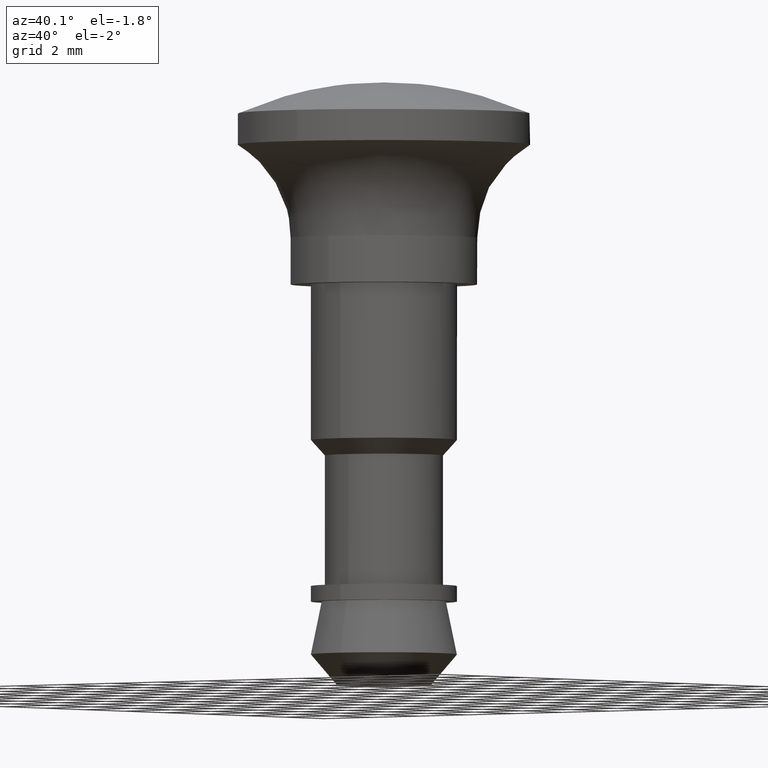
[diagram: clean part render]
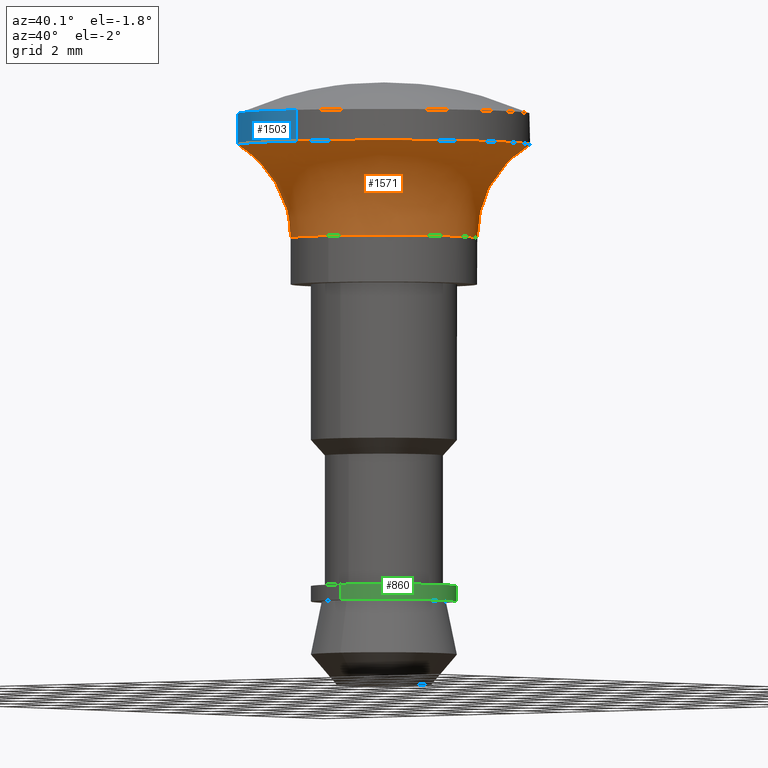
[diagram: same view with three faces highlighted in distinct colors, each labeled with its STEP entity id]
A machine part, auxiliary view with three faces highlighted in distinct colors.
Their STEP definitions:

[orange] entity #1571 — the highlighted face is a freeform B-spline surface patch.
#70=CARTESIAN_POINT('',(-2.808430836194138,-1.054853657297454,1.498000000000001));
#71=VERTEX_POINT('',#70);
#72=CARTESIAN_POINT('',(-3.0,0.0,1.498000000000000));
#73=VERTEX_POINT('',#72);
#74=CARTESIAN_POINT('',(-2.808430836194138,-1.054853657297454,1.498000000000001));
#75=CARTESIAN_POINT('',(-3.000000000000001,-0.544821864819847,1.498000000000000));
#76=CARTESIAN_POINT('',(-3.0,0.0,1.498000000000000));
#84=(BOUNDED_CURVE()B_SPLINE_CURVE(2,(#74,#75,#76),.UNSPECIFIED.,.F.,.U.)B_SPLINE_CURVE_WITH_KNOTS((3,3),(0.940284200805494,1.0),.UNSPECIFIED.)CURVE()GEOMETRIC_REPRESENTATION_ITEM()RATIONAL_B_SPLINE_CURVE((0.893499591234335,0.930038589439614,1.0))REPRESENTATION_ITEM(''));
#85=EDGE_CURVE('',#71,#73,#84,.T.);
#87=CARTESIAN_POINT('',(-2.470599186242353,1.701804824575161,1.497997071134931));
#88=VERTEX_POINT('',#87);
#89=CARTESIAN_POINT('',(-3.0,0.0,1.498000000000000));
#90=CARTESIAN_POINT('',(-3.000000000000595,0.933245938866376,1.497998535567466));
#91=CARTESIAN_POINT('',(-2.470599186242354,1.701804824575161,1.497997071134931));
#99=(BOUNDED_CURVE()B_SPLINE_CURVE(2,(#89,#90,#91),.UNSPECIFIED.,.F.,.U.)B_SPLINE_CURVE_WITH_KNOTS((3,3),(0.0,0.097429828936804),.UNSPECIFIED.)CURVE()GEOMETRIC_REPRESENTATION_ITEM()RATIONAL_B_SPLINE_CURVE((1.0,0.885853855177021,0.860677625265231))REPRESENTATION_ITEM(''));
#100=EDGE_CURVE('',#73,#88,#99,.T.);
#102=CARTESIAN_POINT('',(1.840320043787088,2.369223952363005,1.497997005857969));
#103=VERTEX_POINT('',#102);
#119=CARTESIAN_POINT('',(3.0,0.0,1.498000000000000));
#120=VERTEX_POINT('',#119);
#121=CARTESIAN_POINT('',(1.840320043787088,2.369223952363005,1.497997005857970));
#122=CARTESIAN_POINT('',(3.000000000000771,1.468430143625183,1.497998502928985));
#123=CARTESIAN_POINT('',(3.0,0.0,1.498000000000000));
#131=(BOUNDED_CURVE()B_SPLINE_CURVE(2,(#121,#122,#123),.UNSPECIFIED.,.F.,.U.)B_SPLINE_CURVE_WITH_KNOTS((3,3),(0.356116021520993,0.500000000000000),.UNSPECIFIED.)CURVE()GEOMETRIC_REPRESENTATION_ITEM()RATIONAL_B_SPLINE_CURVE((0.856895697210534,0.831429433630393,1.0))REPRESENTATION_ITEM(''));
#132=EDGE_CURVE('',#103,#120,#131,.T.);
#134=CARTESIAN_POINT('',(0.183141592714504,-2.994404641494152,1.498000000000070));
#135=VERTEX_POINT('',#134);
#136=CARTESIAN_POINT('',(3.0,0.0,1.498000000000000));
#137=CARTESIAN_POINT('',(3.0,-2.822122002065718,1.498000000000001));
#138=CARTESIAN_POINT('',(0.183141592714504,-2.994404641494152,1.498000000000070));
#146=(BOUNDED_CURVE()B_SPLINE_CURVE(2,(#136,#137,#138),.UNSPECIFIED.,.F.,.U.)B_SPLINE_CURVE_WITH_KNOTS((3,3),(0.500000000000000,0.739333194226175),.UNSPECIFIED.)CURVE()GEOMETRIC_REPRESENTATION_ITEM()RATIONAL_B_SPLINE_CURVE((1.0,0.719603721496762,0.976072538860020))REPRESENTATION_ITEM(''));
#147=EDGE_CURVE('',#120,#135,#146,.T.);
#225=CARTESIAN_POINT('',(0.183141592714504,-2.994404641494152,1.498000000000070));
#226=CARTESIAN_POINT('',(0.091656271306839,-3.000000000000000,1.498000000000000));
#227=CARTESIAN_POINT('',(0.0,-3.0,1.498000000000000));
#228=CARTESIAN_POINT('',(-2.077829207340088,-3.0,1.498000000000001));
#229=CARTESIAN_POINT('',(-2.808430836194138,-1.054853657297454,1.498000000000002));
#237=(BOUNDED_CURVE()B_SPLINE_CURVE(2,(#225,#226,#227,#228,#229),.UNSPECIFIED.,.F.,.U.)B_SPLINE_CURVE_WITH_KNOTS((3,2,3),(0.739333194226175,0.750000000000000,0.940284200805494),.UNSPECIFIED.)CURVE()GEOMETRIC_REPRESENTATION_ITEM()RATIONAL_B_SPLINE_CURVE((0.976072538860020,0.987503059689786,1.0,0.777068191746934,0.893499591234334))REPRESENTATION_ITEM(''));
#238=EDGE_CURVE('',#135,#71,#237,.T.);
#1310=CARTESIAN_POINT('',(-4.399878107368780,-1.652601384581499,4.499666203920985));
#1311=VERTEX_POINT('',#1310);
#1312=CARTESIAN_POINT('',(-4.700000000000000,0.0,4.499666203960731));
#1313=VERTEX_POINT('',#1312);
#1314=CARTESIAN_POINT('',(-4.399878107368779,-1.652601384581500,4.499666203920985));
#1315=CARTESIAN_POINT('',(-4.700000930966199,-0.853552970732249,4.499666203940858));
#1316=CARTESIAN_POINT('',(-4.700000000000000,0.0,4.499666203960731));
#1324=(BOUNDED_CURVE()B_SPLINE_CURVE(2,(#1314,#1315,#1316),.UNSPECIFIED.,.F.,.U.)B_SPLINE_CURVE_WITH_KNOTS((3,3),(0.940284307113158,1.0),.UNSPECIFIED.)CURVE()GEOMETRIC_REPRESENTATION_ITEM()RATIONAL_B_SPLINE_CURVE((0.893499721329846,0.930038713986789,1.0))REPRESENTATION_ITEM(''));
#1325=EDGE_CURVE('',#1311,#1313,#1324,.T.);
#1381=CARTESIAN_POINT('',(0.286922287763427,-4.691235902913967,4.499666203926619));
#1382=VERTEX_POINT('',#1381);
#1388=CARTESIAN_POINT('',(4.700000000000000,0.0,4.499666203960731));
#1389=VERTEX_POINT('',#1388);
#1390=CARTESIAN_POINT('',(4.700000000000000,0.0,4.499666203960731));
#1391=CARTESIAN_POINT('',(4.700000060709562,-4.421325143596317,4.499666203943675));
#1392=CARTESIAN_POINT('',(0.286922287763427,-4.691235902913967,4.499666203926619));
#1400=(BOUNDED_CURVE()B_SPLINE_CURVE(2,(#1390,#1391,#1392),.UNSPECIFIED.,.F.,.U.)B_SPLINE_CURVE_WITH_KNOTS((3,3),(0.500000000000000,0.739333181803199),.UNSPECIFIED.)CURVE()GEOMETRIC_REPRESENTATION_ITEM()RATIONAL_B_SPLINE_CURVE((1.0,0.719603736051183,0.976072512235166))REPRESENTATION_ITEM(''));
#1401=EDGE_CURVE('',#1389,#1382,#1400,.T.);
#1403=CARTESIAN_POINT('',(2.883163764809257,3.711779003359970,4.499662163489473));
#1404=VERTEX_POINT('',#1403);
#1405=CARTESIAN_POINT('',(2.883163764809257,3.711779003359971,4.499662163489474));
#1406=CARTESIAN_POINT('',(4.699997933374476,2.300538031613682,4.499664183725104));
#1407=CARTESIAN_POINT('',(4.700000000000000,0.0,4.499666203960731));
#1415=(BOUNDED_CURVE()B_SPLINE_CURVE(2,(#1405,#1406,#1407),.UNSPECIFIED.,.F.,.U.)B_SPLINE_CURVE_WITH_KNOTS((3,3),(0.356116014561318,0.500000000000000),.UNSPECIFIED.)CURVE()GEOMETRIC_REPRESENTATION_ITEM()RATIONAL_B_SPLINE_CURVE((0.856895699674143,0.831429425476626,1.0))REPRESENTATION_ITEM(''));
#1416=EDGE_CURVE('',#1404,#1389,#1415,.T.);
#1418=CARTESIAN_POINT('',(-3.870603208739954,2.666164060844125,4.499666203887038));
#1419=VERTEX_POINT('',#1418);
#1435=CARTESIAN_POINT('',(-4.700000000000000,0.0,4.499666203960731));
#1436=CARTESIAN_POINT('',(-4.700000000000000,1.462087414509130,4.499666203960730));
#1437=CARTESIAN_POINT('',(-3.870603208739955,2.666164060844125,4.499666203887037));
#1445=(BOUNDED_CURVE()B_SPLINE_CURVE(2,(#1435,#1436,#1437),.UNSPECIFIED.,.F.,.U.)B_SPLINE_CURVE_WITH_KNOTS((3,3),(0.0,0.097429953509399),.UNSPECIFIED.)CURVE()GEOMETRIC_REPRESENTATION_ITEM()RATIONAL_B_SPLINE_CURVE((1.0,0.885853709231149,0.860677560885333))REPRESENTATION_ITEM(''));
#1446=EDGE_CURVE('',#1313,#1419,#1445,.T.);
#1469=CARTESIAN_POINT('',(0.286922287763427,-4.691235902913967,4.499666203926619));
#1470=CARTESIAN_POINT('',(0.143595074809286,-4.700001958638461,4.499666203926502));
#1471=CARTESIAN_POINT('',(0.000000037626590,-4.700001930900740,4.499666203926380));
#1472=CARTESIAN_POINT('',(-3.255269030812446,-4.700001302092490,4.499666203923624));
#1473=CARTESIAN_POINT('',(-4.399878107368779,-1.652601384581500,4.499666203920985));
#1481=(BOUNDED_CURVE()B_SPLINE_CURVE(2,(#1469,#1470,#1471,#1472,#1473),.UNSPECIFIED.,.F.,.U.)B_SPLINE_CURVE_WITH_KNOTS((3,2,3),(0.739333181803199,0.750000000000000,0.940284307113158),.UNSPECIFIED.)CURVE()GEOMETRIC_REPRESENTATION_ITEM()RATIONAL_B_SPLINE_CURVE((0.976072512235166,0.987503045135364,1.0,0.777068067199758,0.893499721329846))REPRESENTATION_ITEM(''));
#1482=EDGE_CURVE('',#1382,#1311,#1481,.T.);
#1504=CARTESIAN_POINT('',(1.843247145158280,2.372991441459786,1.315314919886160));
#1505=CARTESIAN_POINT('',(4.084189775755932,0.632314659342278,1.315314919886161));
#1506=CARTESIAN_POINT('',(2.474526819895735,-1.704513255152990,1.315314919886160));
#1507=CARTESIAN_POINT('',(0.770013564742747,-4.179040075048725,1.315314919886161));
#1508=CARTESIAN_POINT('',(-1.704513255152990,-2.474526819895735,1.315314919886160));
#1509=CARTESIAN_POINT('',(-4.179040075048725,-0.770013564742747,1.315314919886161));
#1510=CARTESIAN_POINT('',(-2.474526819895735,1.704513255152990,1.315314919886160));
#1511=CARTESIAN_POINT('',(1.774082235846026,2.283948722322289,3.472493875755331));
#1512=CARTESIAN_POINT('',(3.930937068328064,0.608588060234234,3.472493875755332));
#1513=CARTESIAN_POINT('',(2.381674147622028,-1.640554113795378,3.472493875755332));
#1514=CARTESIAN_POINT('',(0.741120033826650,-4.022228261417407,3.472493875755331));
#1515=CARTESIAN_POINT('',(-1.640554113795378,-2.381674147622028,3.472493875755332));
#1516=CARTESIAN_POINT('',(-4.022228261417407,-0.741120033826650,3.472493875755331));
#1517=CARTESIAN_POINT('',(-2.381674147622030,1.640554113795378,3.472493875755332));
#1518=CARTESIAN_POINT('',(2.925935598041360,3.766841658023266,4.540387040544688));
#1519=CARTESIAN_POINT('',(6.483165475357175,1.003724311084771,4.540387040544688));
#1520=CARTESIAN_POINT('',(3.928016994172144,-2.705712049350401,4.540387040544688));
#1521=CARTESIAN_POINT('',(1.222304944821743,-6.633729043522544,4.540387040544688));
#1522=CARTESIAN_POINT('',(-2.705712049350400,-3.928016994172144,4.540387040544688));
#1523=CARTESIAN_POINT('',(-6.633729043522544,-1.222304944821744,4.540387040544688));
#1524=CARTESIAN_POINT('',(-3.928016994172144,2.705712049350400,4.540387040544688));
#1532=(BOUNDED_SURFACE()B_SPLINE_SURFACE(2,2,((#1504,#1511,#1518),(#1505,#1512,#1519),(#1506,#1513,#1520),(#1507,#1514,#1521),(#1508,#1515,#1522),(#1509,#1516,#1523),(#1510,#1517,#1524)),.UNSPECIFIED.,.F.,.F.,.U.)B_SPLINE_SURFACE_WITH_KNOTS((3,2,2,3),(3,3),(0.0,7.586616001491278,15.489341003044689,23.392066004598110),(0.0,3.968106248262008),.UNSPECIFIED.)GEOMETRIC_REPRESENTATION_ITEM()RATIONAL_B_SPLINE_SURFACE(((0.861043302611719,0.780709854679835,0.977505800795127),(0.633180189259375,0.574105869058425,0.718822509939086),(0.880857486381488,0.798675418646914,1.0),(0.622860301879287,0.564748804492238,0.707106781186548),(0.880857486381488,0.798675418646914,1.0),(0.622860301879287,0.564748804492238,0.707106781186548),(0.880857486381488,0.798675418646914,1.0)))REPRESENTATION_ITEM('')SURFACE());
#1533=ORIENTED_EDGE('',*,*,#132,.F.);
#1534=CARTESIAN_POINT('',(1.840320043787088,2.369223952363005,1.497997005857969));
#1535=CARTESIAN_POINT('',(1.840318801150608,2.369222770392055,3.480226193743514));
#1536=CARTESIAN_POINT('',(2.883163764809258,3.711779003359970,4.499662163489473));
#1544=(BOUNDED_CURVE()B_SPLINE_CURVE(2,(#1534,#1535,#1536),.UNSPECIFIED.,.F.,.U.)B_SPLINE_CURVE_WITH_KNOTS((3,3),(-1.342773580176713,-0.032801488928201),.UNSPECIFIED.)CURVE()GEOMETRIC_REPRESENTATION_ITEM()RATIONAL_B_SPLINE_CURVE((0.854176149166172,0.791425375087000,0.968488190799603))REPRESENTATION_ITEM(''));
#1545=EDGE_CURVE('',#103,#1404,#1544,.T.);
#1546=ORIENTED_EDGE('',*,*,#1545,.T.);
#1547=ORIENTED_EDGE('',*,*,#1416,.T.);
#1548=ORIENTED_EDGE('',*,*,#1401,.T.);
#1549=ORIENTED_EDGE('',*,*,#1482,.T.);
#1550=ORIENTED_EDGE('',*,*,#1325,.T.);
#1551=ORIENTED_EDGE('',*,*,#1446,.T.);
#1552=CARTESIAN_POINT('',(-2.470599186242354,1.701804824575161,1.497997071134931));
#1553=CARTESIAN_POINT('',(-2.470597123557083,1.701804895052935,3.480231403980461));
#1554=CARTESIAN_POINT('',(-3.870603208739955,2.666164060844125,4.499666203887038));
#1562=(BOUNDED_CURVE()B_SPLINE_CURVE(2,(#1552,#1553,#1554),.UNSPECIFIED.,.F.,.U.)B_SPLINE_CURVE_WITH_KNOTS((3,3),(-1.342773556897110,-0.032798312252830),.UNSPECIFIED.)CURVE()GEOMETRIC_REPRESENTATION_ITEM()RATIONAL_B_SPLINE_CURVE((0.873832304873351,0.809637370355804,0.990775756794485))REPRESENTATION_ITEM(''));
#1563=EDGE_CURVE('',#88,#1419,#1562,.T.);
#1564=ORIENTED_EDGE('',*,*,#1563,.F.);
#1565=ORIENTED_EDGE('',*,*,#100,.F.);
#1566=ORIENTED_EDGE('',*,*,#85,.F.);
#1567=ORIENTED_EDGE('',*,*,#238,.F.);
#1568=ORIENTED_EDGE('',*,*,#147,.F.);
#1569=EDGE_LOOP('',(#1533,#1546,#1547,#1548,#1549,#1550,#1551,#1564,#1565,#1566,#1567,#1568));
#1570=FACE_OUTER_BOUND('',#1569,.T.);
#1571=ADVANCED_FACE('',(#1570),#1532,.F.);

[blue] entity #1503 — the highlighted face is a freeform B-spline surface patch.
#1310=CARTESIAN_POINT('',(-4.399878107368780,-1.652601384581499,4.499666203920985));
#1311=VERTEX_POINT('',#1310);
#1327=CARTESIAN_POINT('',(-4.399881813166960,-1.652602831381717,5.499996454043682));
#1328=VERTEX_POINT('',#1327);
#1329=CARTESIAN_POINT('',(-4.399881813166960,-1.652602831381717,5.499996454043682));
#1330=CARTESIAN_POINT('',(-4.399878107368780,-1.652601384581499,4.499666203920985));
#1331=QUASI_UNIFORM_CURVE('',1,(#1329,#1330),.UNSPECIFIED.,.F.,.U.);
#1332=EDGE_CURVE('',#1328,#1311,#1331,.T.);
#1366=CARTESIAN_POINT('',(0.286922604925091,-4.691239868829175,5.499996454043680));
#1367=VERTEX_POINT('',#1366);
#1381=CARTESIAN_POINT('',(0.286922287763427,-4.691235902913967,4.499666203926619));
#1382=VERTEX_POINT('',#1381);
#1383=CARTESIAN_POINT('',(0.286922604925091,-4.691239868829175,5.499996454043680));
#1384=CARTESIAN_POINT('',(0.286922287763427,-4.691235902913967,4.499666203926619));
#1385=QUASI_UNIFORM_CURVE('',1,(#1383,#1384),.UNSPECIFIED.,.F.,.U.);
#1386=EDGE_CURVE('',#1367,#1382,#1385,.T.);
#1451=CARTESIAN_POINT('',(0.313398110055444,-4.689618564916301,5.525004811307533));
#1452=CARTESIAN_POINT('',(0.300178728378240,-4.690427096936450,5.525004811307536));
#1453=CARTESIAN_POINT('',(-3.178939724991473,-4.903219097358443,5.525004811307537));
#1454=CARTESIAN_POINT('',(-4.405032939373253,-1.638882876745008,5.525004811307536));
#1455=CARTESIAN_POINT('',(-4.410179349992054,-1.625181133360375,5.525004811307536));
#1456=CARTESIAN_POINT('',(0.313398110055444,-4.689618564916301,4.474028597294019));
#1457=CARTESIAN_POINT('',(0.300178728378240,-4.690427096936450,4.474028597294021));
#1458=CARTESIAN_POINT('',(-3.178939724991473,-4.903219097358443,4.474028597294022));
#1459=CARTESIAN_POINT('',(-4.405032939373253,-1.638882876745008,4.474028597294021));
#1460=CARTESIAN_POINT('',(-4.410179349992054,-1.625181133360375,4.474028597294022));
#1468=(BOUNDED_SURFACE()B_SPLINE_SURFACE(2,1,((#1451,#1456),(#1452,#1457),(#1453,#1458),(#1454,#1459),(#1455,#1460)),.UNSPECIFIED.,.F.,.F.,.U.)B_SPLINE_SURFACE_WITH_KNOTS((3,1,1,3),(2,2),(0.0,0.030929685173058,6.218243924115412,6.249184755876662),(0.0,1.0),.UNSPECIFIED.)GEOMETRIC_REPRESENTATION_ITEM()RATIONAL_B_SPLINE_SURFACE(((1.002342624201036,1.002342624201036),(1.001171312100518,1.001171312100518),(0.765685424949238,0.765685424949238),(0.906977210513847,0.906977210513847),(0.907680251047999,0.907680251047999)))REPRESENTATION_ITEM('')SURFACE());
#1469=CARTESIAN_POINT('',(0.286922287763427,-4.691235902913967,4.499666203926619));
#1470=CARTESIAN_POINT('',(0.143595074809286,-4.700001958638461,4.499666203926502));
#1471=CARTESIAN_POINT('',(0.000000037626590,-4.700001930900740,4.499666203926380));
#1472=CARTESIAN_POINT('',(-3.255269030812446,-4.700001302092490,4.499666203923624));
#1473=CARTESIAN_POINT('',(-4.399878107368779,-1.652601384581500,4.499666203920985));
#1481=(BOUNDED_CURVE()B_SPLINE_CURVE(2,(#1469,#1470,#1471,#1472,#1473),.UNSPECIFIED.,.F.,.U.)B_SPLINE_CURVE_WITH_KNOTS((3,2,3),(0.739333181803199,0.750000000000000,0.940284307113158),.UNSPECIFIED.)CURVE()GEOMETRIC_REPRESENTATION_ITEM()RATIONAL_B_SPLINE_CURVE((0.976072512235166,0.987503045135364,1.0,0.777068067199758,0.893499721329846))REPRESENTATION_ITEM(''));
#1482=EDGE_CURVE('',#1382,#1311,#1481,.T.);
#1483=ORIENTED_EDGE('',*,*,#1482,.F.);
#1484=ORIENTED_EDGE('',*,*,#1386,.F.);
#1485=CARTESIAN_POINT('',(0.286922604925091,-4.691239868829175,5.499996454043680));
#1486=CARTESIAN_POINT('',(0.143595194321125,-4.700005997114269,5.499996454043680));
#1487=CARTESIAN_POINT('',(-0.000000037626904,-4.700006024852133,5.499996454043680));
#1488=CARTESIAN_POINT('',(-3.255272638528155,-4.700006653663442,5.499996454043680));
#1489=CARTESIAN_POINT('',(-4.399881813166959,-1.652602831381717,5.499996454043682));
#1497=(BOUNDED_CURVE()B_SPLINE_CURVE(2,(#1485,#1486,#1487,#1488,#1489),.UNSPECIFIED.,.F.,.U.)B_SPLINE_CURVE_WITH_KNOTS((3,2,3),(0.739333179069552,0.750000000000000,0.940284305386098),.UNSPECIFIED.)CURVE()GEOMETRIC_REPRESENTATION_ITEM()RATIONAL_B_SPLINE_CURVE((0.976072506376430,0.987503041932698,1.0,0.777068069223135,0.893499719216330))REPRESENTATION_ITEM(''));
#1498=EDGE_CURVE('',#1367,#1328,#1497,.T.);
#1499=ORIENTED_EDGE('',*,*,#1498,.T.);
#1500=ORIENTED_EDGE('',*,*,#1332,.T.);
#1501=EDGE_LOOP('',(#1483,#1484,#1499,#1500));
#1502=FACE_OUTER_BOUND('',#1501,.T.);
#1503=ADVANCED_FACE('',(#1502),#1468,.T.);

[green] entity #860 — the highlighted face is a freeform B-spline surface patch.
#758=CARTESIAN_POINT('',(-0.277380451443382,2.333572386954616,-9.687500000000000));
#759=CARTESIAN_POINT('',(-0.210594612299248,2.341510896304224,-9.687500000000000));
#760=CARTESIAN_POINT('',(-0.143464067906914,2.345616776291387,-9.687500000000000));
#761=CARTESIAN_POINT('',(2.202152708384472,2.489080844198301,-9.687500000000000));
#762=CARTESIAN_POINT('',(2.345616776291387,0.143464067906914,-9.687500000000000));
#763=CARTESIAN_POINT('',(2.489080844198301,-2.202152708384472,-9.687500000000000));
#764=CARTESIAN_POINT('',(0.143464067906914,-2.345616776291387,-9.687500000000000));
#765=CARTESIAN_POINT('',(-0.277380451443382,2.333572386954616,-10.212812500000004));
#766=CARTESIAN_POINT('',(-0.210594612299248,2.341510896304224,-10.212812500000000));
#767=CARTESIAN_POINT('',(-0.143464067906914,2.345616776291387,-10.212812500000000));
#768=CARTESIAN_POINT('',(2.202152708384472,2.489080844198301,-10.212812500000004));
#769=CARTESIAN_POINT('',(2.345616776291387,0.143464067906914,-10.212812500000000));
#770=CARTESIAN_POINT('',(2.489080844198301,-2.202152708384472,-10.212812500000004));
#771=CARTESIAN_POINT('',(0.143464067906914,-2.345616776291387,-10.212812500000000));
#779=(BOUNDED_SURFACE()B_SPLINE_SURFACE(2,1,((#758,#765),(#759,#766),(#760,#767),(#761,#768),(#762,#769),(#763,#770),(#764,#771)),.UNSPECIFIED.,.F.,.F.,.U.)B_SPLINE_SURFACE_WITH_KNOTS((3,2,2,3),(2,2),(0.0,0.155744299452284,4.049351785759376,7.942959272066468),(0.0,1.0),.UNSPECIFIED.)GEOMETRIC_REPRESENTATION_ITEM()RATIONAL_B_SPLINE_SURFACE(((0.977505800795127,0.977505800795127),(0.988284271247462,0.988284271247462),(1.0,1.0),(0.707106781186548,0.707106781186548),(1.0,1.0),(0.707106781186548,0.707106781186548),(1.0,1.0)))REPRESENTATION_ITEM('')SURFACE());
#780=CARTESIAN_POINT('',(-0.277380451457325,2.333572386952959,-9.700000000000001));
#781=VERTEX_POINT('',#780);
#782=CARTESIAN_POINT('',(2.350000000000000,0.0,-9.700000000000001));
#783=VERTEX_POINT('',#782);
#784=CARTESIAN_POINT('',(-0.277380451457325,2.333572386952959,-9.700000000000001));
#785=CARTESIAN_POINT('',(-0.139176681196079,2.350000000000000,-9.700000000000001));
#786=CARTESIAN_POINT('',(0.0,2.350000000000000,-9.700000000000001));
#787=CARTESIAN_POINT('',(2.350000000000001,2.350000000000001,-9.700000000000001));
#788=CARTESIAN_POINT('',(2.350000000000000,0.0,-9.700000000000001));
#796=(BOUNDED_CURVE()B_SPLINE_CURVE(2,(#784,#785,#786,#787,#788),.UNSPECIFIED.,.F.,.U.)B_SPLINE_CURVE_WITH_KNOTS((3,2,3),(0.229562473513625,0.250000000000000,0.500000000000000),.UNSPECIFIED.)CURVE()GEOMETRIC_REPRESENTATION_ITEM()RATIONAL_B_SPLINE_CURVE((0.956026754183927,0.976055948331281,1.0,0.707106781186547,1.0))REPRESENTATION_ITEM(''));
#797=EDGE_CURVE('',#781,#783,#796,.T.);
#798=ORIENTED_EDGE('',*,*,#797,.T.);
#799=CARTESIAN_POINT('',(0.143464068246363,-2.345616776270625,-9.700000000000001));
#800=VERTEX_POINT('',#799);
#801=CARTESIAN_POINT('',(2.350000000000000,0.0,-9.700000000000001));
#802=CARTESIAN_POINT('',(2.350000000000000,-2.210659256587344,-9.700000000000001));
#803=CARTESIAN_POINT('',(0.143464068246363,-2.345616776270625,-9.700000000000001));
#811=(BOUNDED_CURVE()B_SPLINE_CURVE(2,(#801,#802,#803),.UNSPECIFIED.,.F.,.U.)B_SPLINE_CURVE_WITH_KNOTS((3,3),(0.500000000000000,0.739332962192027),.UNSPECIFIED.)CURVE()GEOMETRIC_REPRESENTATION_ITEM()RATIONAL_B_SPLINE_CURVE((1.0,0.719603993341675,0.976072041566168))REPRESENTATION_ITEM(''));
#812=EDGE_CURVE('',#783,#800,#811,.T.);
#813=ORIENTED_EDGE('',*,*,#812,.T.);
#814=CARTESIAN_POINT('',(0.143464068246363,-2.345616776270625,-10.199999999999999));
#815=VERTEX_POINT('',#814);
#816=CARTESIAN_POINT('',(0.143464068246363,-2.345616776270625,-9.700000000000001));
#817=CARTESIAN_POINT('',(0.143464068246363,-2.345616776270625,-10.199999999999999));
#818=QUASI_UNIFORM_CURVE('',1,(#816,#817),.UNSPECIFIED.,.F.,.U.);
#819=EDGE_CURVE('',#800,#815,#818,.T.);
#820=ORIENTED_EDGE('',*,*,#819,.T.);
#821=CARTESIAN_POINT('',(2.350000000000000,0.0,-10.199999999999999));
#822=VERTEX_POINT('',#821);
#823=CARTESIAN_POINT('',(2.350000000000000,0.0,-10.199999999999999));
#824=CARTESIAN_POINT('',(2.350000000000000,-2.210659256587344,-10.200000000000001));
#825=CARTESIAN_POINT('',(0.143464068246363,-2.345616776270625,-10.200000000000001));
#833=(BOUNDED_CURVE()B_SPLINE_CURVE(2,(#823,#824,#825),.UNSPECIFIED.,.F.,.U.)B_SPLINE_CURVE_WITH_KNOTS((3,3),(0.500000000000000,0.739332962192027),.UNSPECIFIED.)CURVE()GEOMETRIC_REPRESENTATION_ITEM()RATIONAL_B_SPLINE_CURVE((1.0,0.719603993341675,0.976072041566168))REPRESENTATION_ITEM(''));
#834=EDGE_CURVE('',#822,#815,#833,.T.);
#835=ORIENTED_EDGE('',*,*,#834,.F.);
#836=CARTESIAN_POINT('',(-0.277380451457325,2.333572386952959,-10.199999999999999));
#837=VERTEX_POINT('',#836);
#838=CARTESIAN_POINT('',(-0.277380451457325,2.333572386952959,-10.199999999999999));
#839=CARTESIAN_POINT('',(-0.139176681196079,2.350000000000000,-10.200000000000001));
#840=CARTESIAN_POINT('',(0.0,2.350000000000000,-10.199999999999999));
#841=CARTESIAN_POINT('',(2.350000000000001,2.350000000000001,-10.200000000000001));
#842=CARTESIAN_POINT('',(2.350000000000000,0.0,-10.199999999999999));
#850=(BOUNDED_CURVE()B_SPLINE_CURVE(2,(#838,#839,#840,#841,#842),.UNSPECIFIED.,.F.,.U.)B_SPLINE_CURVE_WITH_KNOTS((3,2,3),(0.229562473513625,0.250000000000000,0.500000000000000),.UNSPECIFIED.)CURVE()GEOMETRIC_REPRESENTATION_ITEM()RATIONAL_B_SPLINE_CURVE((0.956026754183927,0.976055948331281,1.0,0.707106781186547,1.0))REPRESENTATION_ITEM(''));
#851=EDGE_CURVE('',#837,#822,#850,.T.);
#852=ORIENTED_EDGE('',*,*,#851,.F.);
#853=CARTESIAN_POINT('',(-0.277380451457325,2.333572386952959,-9.700000000000001));
#854=CARTESIAN_POINT('',(-0.277380451457325,2.333572386952959,-10.199999999999999));
#855=QUASI_UNIFORM_CURVE('',1,(#853,#854),.UNSPECIFIED.,.F.,.U.);
#856=EDGE_CURVE('',#781,#837,#855,.T.);
#857=ORIENTED_EDGE('',*,*,#856,.F.);
#858=EDGE_LOOP('',(#798,#813,#820,#835,#852,#857));
#859=FACE_OUTER_BOUND('',#858,.T.);
#860=ADVANCED_FACE('',(#859),#779,.T.);